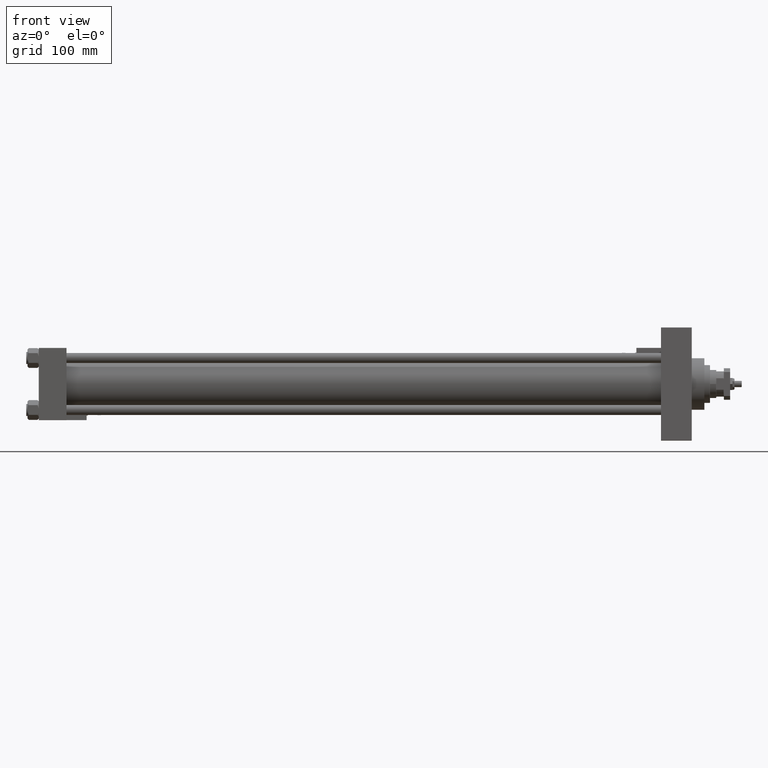
[diagram: clean part render]
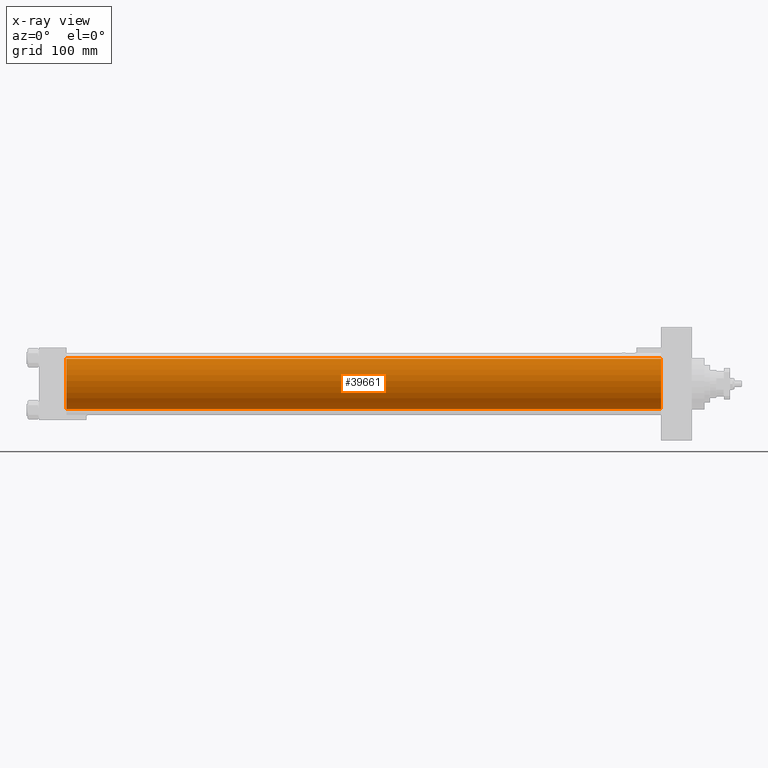
[diagram: x-ray — body ghosted, one internal face saturated and labeled with its STEP entity id]
A machine part, front view, then the same camera in x-ray: the body is ghosted and one INTERNAL B-rep face — a face not visible from any outside direction — is saturated and labeled: STEP entity #39661.
In plain terms, the highlighted cylindrical surface (edge-blend (fillet) strip) has radius 40 mm, axis along (-1, -0, -0).
Its self-contained STEP definition (entity closure, byte-faithful):
#907 = DIRECTION ( 'NONE',  ( 0.000000000000000000, 0.000000000000000000, -1.000000000000000000 ) ) ;
#1637 = AXIS2_PLACEMENT_3D ( 'NONE', #44996, #2333, #19455 ) ;
#2333 = DIRECTION ( 'NONE',  ( 1.000000000000000000, 0.000000000000000000, 0.000000000000000000 ) ) ;
#5206 = EDGE_CURVE ( 'NONE', #35614, #33339, #46879, .T. ) ;
#5973 = CARTESIAN_POINT ( 'NONE',  ( 44.00000000000000000, -2.602085213965210642E-15, 0.000000000000000000 ) ) ;
#8423 = CARTESIAN_POINT ( 'NONE',  ( 989.0000000000000000, 2.296501982624201990E-15, -40.00000000000000000 ) ) ;
#10414 = AXIS2_PLACEMENT_3D ( 'NONE', #25766, #51585, #26035 ) ;
#11005 = EDGE_CURVE ( 'NONE', #42328, #35614, #33884, .T. ) ;
#17012 = EDGE_CURVE ( 'NONE', #42328, #27134, #33490, .T. ) ;
#17314 = CARTESIAN_POINT ( 'NONE',  ( 44.00000000000000000, -2.602085213965210642E-15, 40.00000000000000000 ) ) ;
#18006 = VECTOR ( 'NONE', #32953, 1000.000000000000000 ) ;
#19379 = CARTESIAN_POINT ( 'NONE',  ( 44.00000000000000000, 2.296501982624201990E-15, -40.00000000000000000 ) ) ;
#19455 = DIRECTION ( 'NONE',  ( 0.000000000000000000, 0.000000000000000000, -1.000000000000000000 ) ) ;
#23462 = EDGE_CURVE ( 'NONE', #27134, #33339, #50269, .T. ) ;
#24618 = EDGE_LOOP ( 'NONE', ( #43137, #37386, #50938, #44746 ) ) ;
#25545 = DIRECTION ( 'NONE',  ( -1.000000000000000000, -0.000000000000000000, -0.000000000000000000 ) ) ;
#25766 = CARTESIAN_POINT ( 'NONE',  ( 989.0000000000000000, -2.602085213965210642E-15, 0.000000000000000000 ) ) ;
#26035 = DIRECTION ( 'NONE',  ( 0.000000000000000000, 0.000000000000000000, 1.000000000000000000 ) ) ;
#26588 = CYLINDRICAL_SURFACE ( 'NONE', #10414, 40.00000000000000000 ) ;
#27134 = VERTEX_POINT ( 'NONE', #17314 ) ;
#29321 = VECTOR ( 'NONE', #25545, 1000.000000000000000 ) ;
#32953 = DIRECTION ( 'NONE',  ( -1.000000000000000000, -0.000000000000000000, -0.000000000000000000 ) ) ;
#33339 = VERTEX_POINT ( 'NONE', #19379 ) ;
#33490 = LINE ( 'NONE', #46418, #18006 ) ;
#33884 = CIRCLE ( 'NONE', #1637, 40.00000000000000000 ) ;
#35614 = VERTEX_POINT ( 'NONE', #51015 ) ;
#37386 = ORIENTED_EDGE ( 'NONE', *, *, #5206, .T. ) ;
#39661 = ADVANCED_FACE ( 'NONE', ( #51862 ), #26588, .F. ) ;
#42328 = VERTEX_POINT ( 'NONE', #55391 ) ;
#43137 = ORIENTED_EDGE ( 'NONE', *, *, #11005, .T. ) ;
#43582 = DIRECTION ( 'NONE',  ( 1.000000000000000000, 0.000000000000000000, 0.000000000000000000 ) ) ;
#44746 = ORIENTED_EDGE ( 'NONE', *, *, #17012, .F. ) ;
#44996 = CARTESIAN_POINT ( 'NONE',  ( 989.0000000000000000, -2.602085213965210642E-15, 0.000000000000000000 ) ) ;
#46418 = CARTESIAN_POINT ( 'NONE',  ( 989.0000000000000000, -2.602085213965210642E-15, 40.00000000000000000 ) ) ;
#46879 = LINE ( 'NONE', #8423, #29321 ) ;
#50269 = CIRCLE ( 'NONE', #52951, 40.00000000000000000 ) ;
#50938 = ORIENTED_EDGE ( 'NONE', *, *, #23462, .F. ) ;
#51015 = CARTESIAN_POINT ( 'NONE',  ( 989.0000000000000000, 2.296501982624201990E-15, -40.00000000000000000 ) ) ;
#51585 = DIRECTION ( 'NONE',  ( -1.000000000000000000, -0.000000000000000000, -0.000000000000000000 ) ) ;
#51862 = FACE_OUTER_BOUND ( 'NONE', #24618, .T. ) ;
#52951 = AXIS2_PLACEMENT_3D ( 'NONE', #5973, #43582, #907 ) ;
#55391 = CARTESIAN_POINT ( 'NONE',  ( 989.0000000000000000, -2.602085213965210642E-15, 40.00000000000000000 ) ) ;